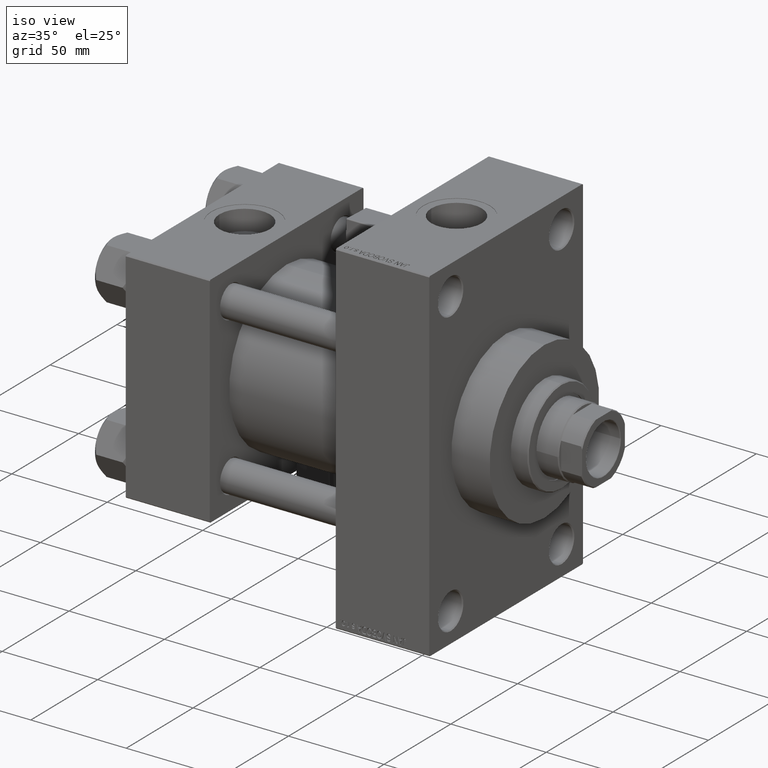
[diagram: clean part render]
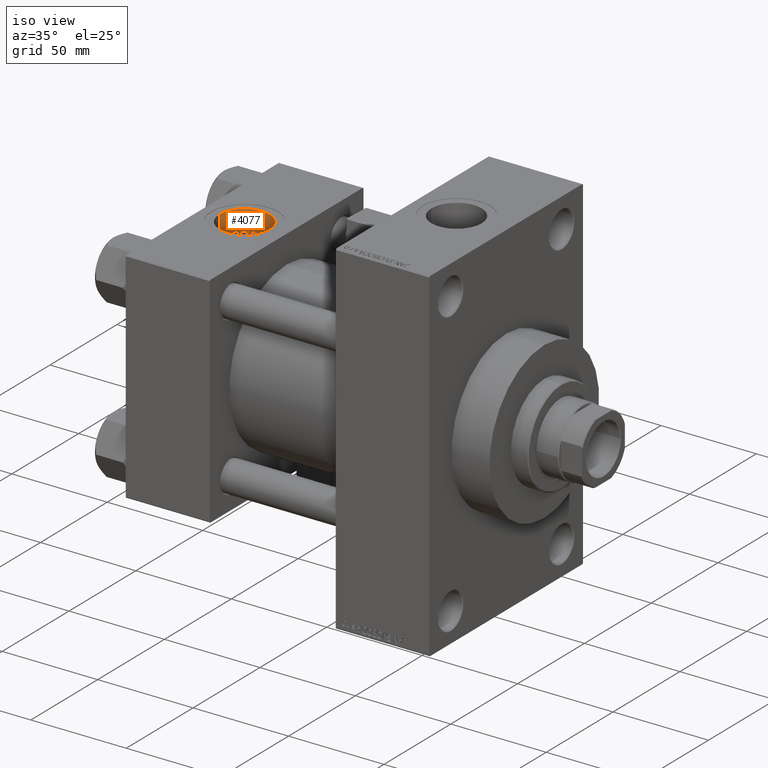
[diagram: same view with one face highlighted and labeled with its STEP entity id]
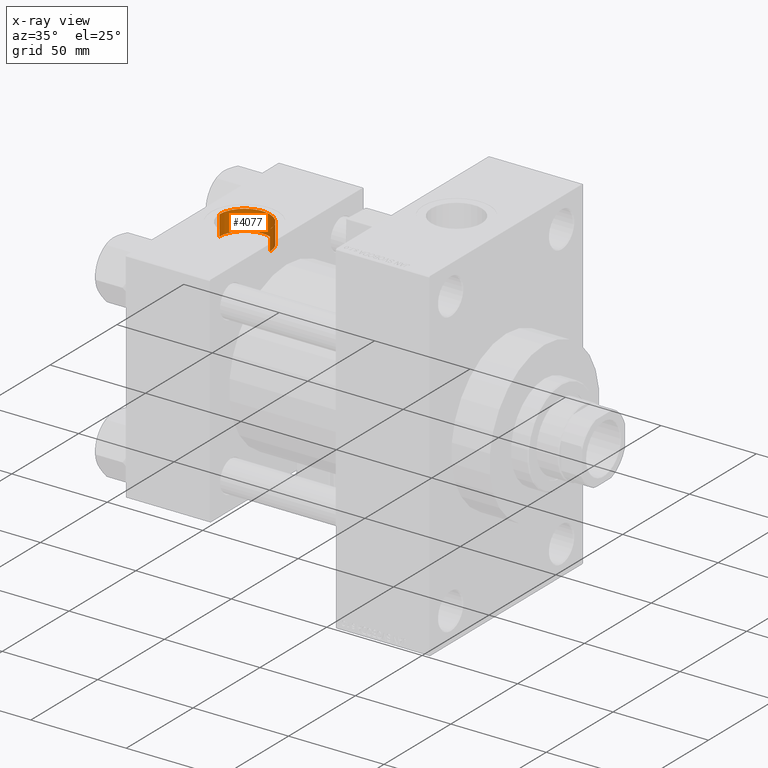
[diagram: x-ray of the same camera — body ghosted, the highlighted face saturated]
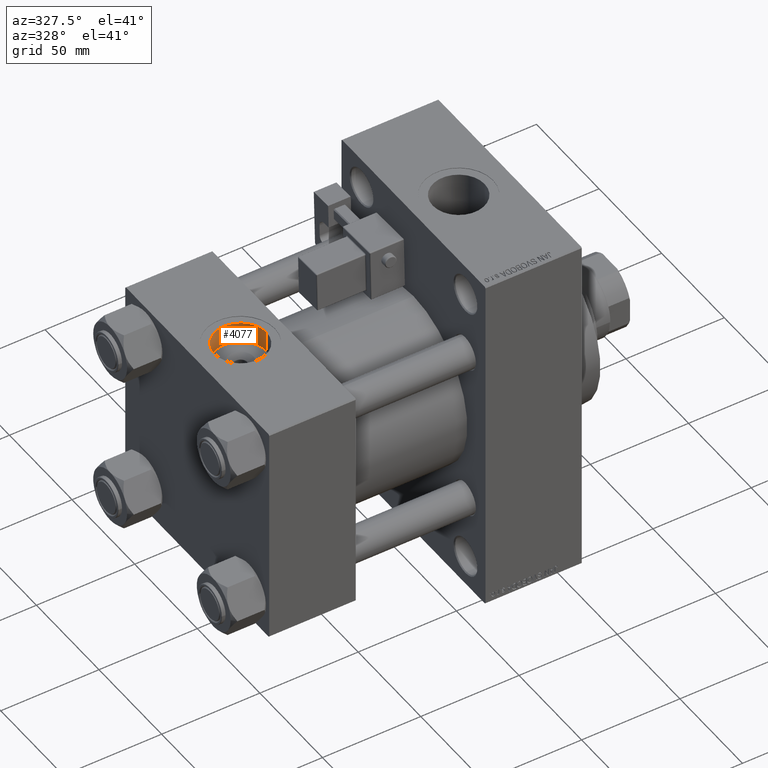
[diagram: same view with one face highlighted and labeled with its STEP entity id]
A machine part, iso view. The second image highlights one B-rep face of the part: STEP entity #4077.
The next image is the same camera in x-ray: the body ghosted, the highlighted face saturated — about 0% of this face is hidden behind the body in this view.
A second angle (auxiliary view) of the same face is appended — the face is thin or edge-on in the first view.
In plain terms, the highlighted cylindrical surface (edge-blend (fillet) strip) has radius 13.22 mm, axis along (0, 0, 1).
Its self-contained STEP definition (entity closure, byte-faithful):
#225 = CARTESIAN_POINT ( 'NONE',  ( 22.00000000000000000, -8.673617379884035472E-15, 46.70000000000000284 ) ) ;
#875 = VERTEX_POINT ( 'NONE', #31121 ) ;
#2916 = EDGE_CURVE ( 'NONE', #39943, #8828, #29303, .T. ) ;
#3398 = ORIENTED_EDGE ( 'NONE', *, *, #13175, .T. ) ;
#3569 = DIRECTION ( 'NONE',  ( 0.000000000000000000, 0.000000000000000000, 1.000000000000000000 ) ) ;
#4077 = ADVANCED_FACE ( 'NONE', ( #39534 ), #12070, .F. ) ;
#5996 = VERTEX_POINT ( 'NONE', #35406 ) ;
#8790 = DIRECTION ( 'NONE',  ( -0.000000000000000000, -0.000000000000000000, 1.000000000000000000 ) ) ;
#8828 = VERTEX_POINT ( 'NONE', #30956 ) ;
#9284 = LINE ( 'NONE', #17088, #32788 ) ;
#10212 = DIRECTION ( 'NONE',  ( -0.000000000000000000, -0.000000000000000000, 1.000000000000000000 ) ) ;
#10701 = LINE ( 'NONE', #17762, #43927 ) ;
#12070 = CYLINDRICAL_SURFACE ( 'NONE', #33270, 13.22000000000000242 ) ;
#13175 = EDGE_CURVE ( 'NONE', #5996, #39943, #9284, .T. ) ;
#16111 = CARTESIAN_POINT ( 'NONE',  ( 22.00000000000000000, -8.673617379884035472E-15, 46.70000000000000284 ) ) ;
#16876 = EDGE_LOOP ( 'NONE', ( #33584, #27278, #3398, #18729 ) ) ;
#17088 = CARTESIAN_POINT ( 'NONE',  ( 35.21999999999999886, -8.673617379884035472E-15, 46.70000000000000284 ) ) ;
#17762 = CARTESIAN_POINT ( 'NONE',  ( 8.779999999999994031, -7.054634311411234321E-15, 46.70000000000000284 ) ) ;
#18448 = DIRECTION ( 'NONE',  ( 1.000000000000000000, 0.000000000000000000, 0.000000000000000000 ) ) ;
#18729 = ORIENTED_EDGE ( 'NONE', *, *, #2916, .T. ) ;
#21127 = DIRECTION ( 'NONE',  ( 0.000000000000000000, 0.000000000000000000, 1.000000000000000000 ) ) ;
#26134 = DIRECTION ( 'NONE',  ( -0.000000000000000000, -0.000000000000000000, 1.000000000000000000 ) ) ;
#26196 = EDGE_CURVE ( 'NONE', #875, #8828, #10701, .T. ) ;
#27278 = ORIENTED_EDGE ( 'NONE', *, *, #39222, .F. ) ;
#29303 = CIRCLE ( 'NONE', #33347, 13.22000000000000242 ) ;
#30956 = CARTESIAN_POINT ( 'NONE',  ( 8.779999999999994031, -7.054634311411234321E-15, 57.30000000000000426 ) ) ;
#31121 = CARTESIAN_POINT ( 'NONE',  ( 8.779999999999994031, -7.054634311411234321E-15, 46.70000000000000284 ) ) ;
#31470 = DIRECTION ( 'NONE',  ( 1.000000000000000000, 0.000000000000000000, 0.000000000000000000 ) ) ;
#32788 = VECTOR ( 'NONE', #26134, 1000.000000000000000 ) ;
#33270 = AXIS2_PLACEMENT_3D ( 'NONE', #225, #8790, #39289 ) ;
#33347 = AXIS2_PLACEMENT_3D ( 'NONE', #37621, #3569, #18448 ) ;
#33584 = ORIENTED_EDGE ( 'NONE', *, *, #26196, .F. ) ;
#35406 = CARTESIAN_POINT ( 'NONE',  ( 35.21999999999999886, -8.673617379884035472E-15, 46.70000000000000284 ) ) ;
#37621 = CARTESIAN_POINT ( 'NONE',  ( 22.00000000000000000, -8.673617379884035472E-15, 57.30000000000000426 ) ) ;
#39222 = EDGE_CURVE ( 'NONE', #5996, #875, #39483, .T. ) ;
#39289 = DIRECTION ( 'NONE',  ( 1.000000000000000000, 0.000000000000000000, 0.000000000000000000 ) ) ;
#39483 = CIRCLE ( 'NONE', #43512, 13.22000000000000242 ) ;
#39534 = FACE_OUTER_BOUND ( 'NONE', #16876, .T. ) ;
#39943 = VERTEX_POINT ( 'NONE', #48943 ) ;
#43512 = AXIS2_PLACEMENT_3D ( 'NONE', #16111, #21127, #31470 ) ;
#43927 = VECTOR ( 'NONE', #10212, 1000.000000000000000 ) ;
#48943 = CARTESIAN_POINT ( 'NONE',  ( 35.21999999999999886, -8.673617379884035472E-15, 57.30000000000000426 ) ) ;